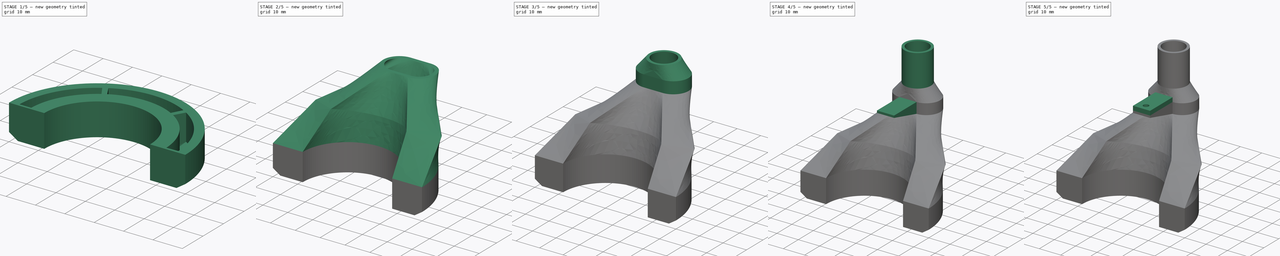
[diagram: build sequence overview — one tinted view per stage of 5, left to right]
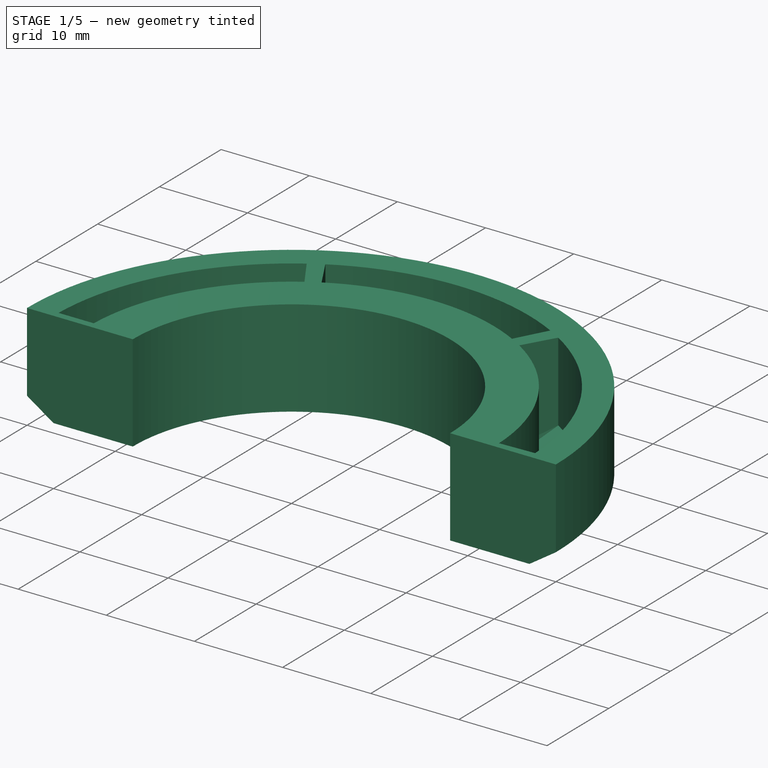
[diagram: stage 1 of 5 — iso view after this stage's code; geometry added in this stage tinted green]
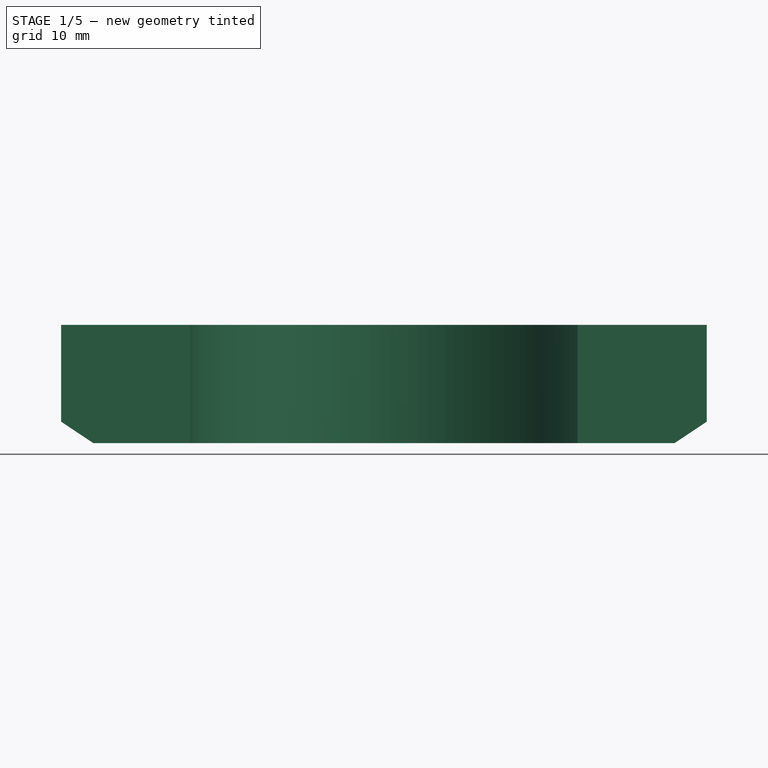
[diagram: stage 1 of 5 — front view after this stage's code; geometry added in this stage tinted green]
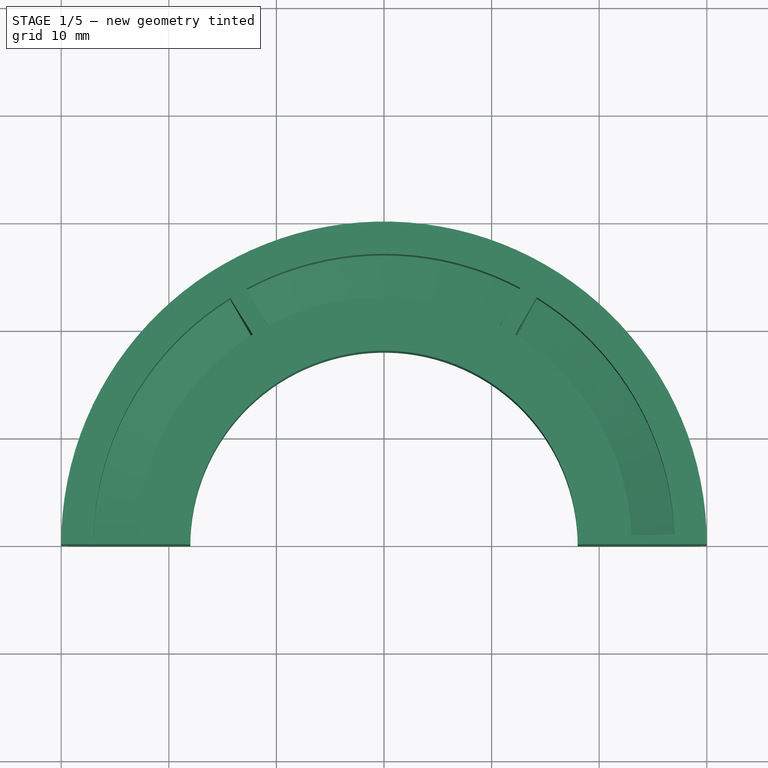
[diagram: stage 1 of 5 — top view after this stage's code; geometry added in this stage tinted green]
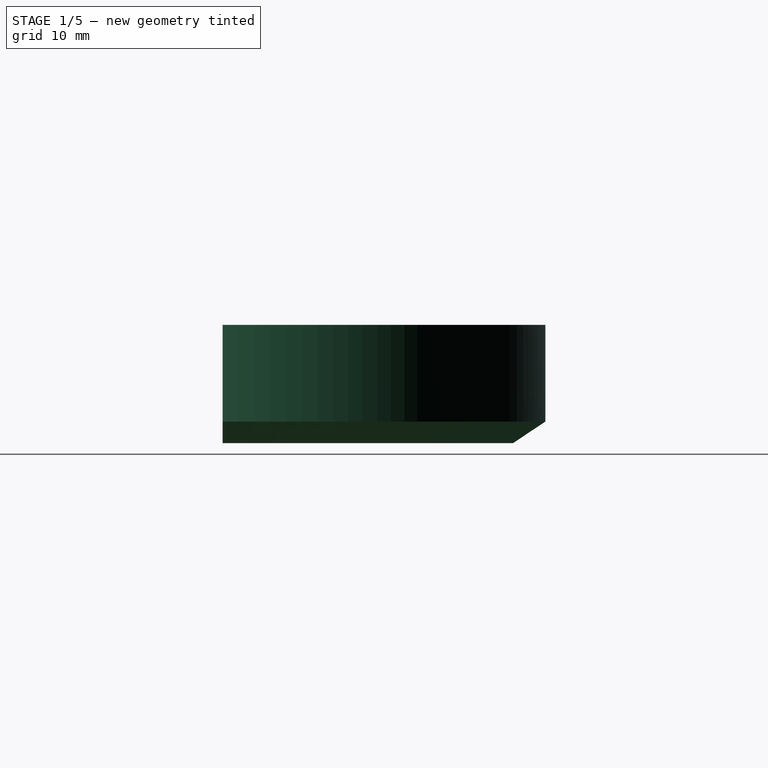
[diagram: stage 1 of 5 — right view after this stage's code; geometry added in this stage tinted green]
FCSTD DOCUMENT  (FreeCAD 2022.118R30769 (Git))
Label: CPAP-fan-diffuser
License: All rights reserved
LicenseURL: http://en.wikipedia.org/wiki/All_rights_reserved
objects: Sketcher::SketchObject×12, App::FeaturePython×11, Part::FeaturePython×8, PartDesign::Plane×6, PartDesign::AdditiveLoft×6, PartDesign::Fillet×3, PartDesign::Pad×3, PartDesign::PolarPattern×1, PartDesign::Chamfer×1, PartDesign::Hole×1, Part::Feature×1, PartDesign::Body×1
note: 72 computed .brp shape members not serialized (recipe doc carries the construction recipe); baked Part::Feature solids carry a one-line shape summary decoded from their .brp

FEATURE [Sketcher::SketchObject] Sketch
  FullyConstrained = true
  TreeRank = 13
  sketch-geometry (8):
    g0: ArcOfCircle CenterX=0 CenterY=0 CenterZ=0 NormalX=0 NormalY=0 NormalZ=1 AngleXU=0 Radius=18 StartAngle=2.0944 EndAngle=3.14159
    g1: ArcOfCircle CenterX=0 CenterY=0 CenterZ=0 NormalX=0 NormalY=0 NormalZ=1 AngleXU=0 Radius=20 StartAngle=2.13441 EndAngle=3.10158
    g2: ArcOfCircle CenterX=0 CenterY=0 CenterZ=0 NormalX=0 NormalY=0 NormalZ=1 AngleXU=0 Radius=23 StartAngle=2.13441 EndAngle=3.10158
    g3: ArcOfCircle CenterX=0 CenterY=0 CenterZ=0 NormalX=0 NormalY=0 NormalZ=1 AngleXU=0 Radius=27 StartAngle=2.0944 EndAngle=3.14159
    g4: LineSegment StartX=-12.2875 StartY=19.4426 StartZ=0 EndX=-10.6848 EndY=16.9066 EndZ=0
    g5: LineSegment StartX=-13.5 StartY=23.3827 StartZ=0 EndX=-9 EndY=15.5885 EndZ=0
    g6: LineSegment StartX=-27 StartY=3.3e-15 StartZ=0 EndX=-18 EndY=2.2e-15 EndZ=0
    g7: LineSegment StartX=-19.984 StartY=0.8 StartZ=0 EndX=-22.9816 EndY=0.92 EndZ=0
  constraints (24):
    c: Coincident(g0,g-1)
    c: PointOnObject(g0,g-1)
    c: Coincident(g1,g0)
    c: Radius(g0) = 18
    c: Radius(g1) = 20
    c: Coincident(g2,g0)
    c: Coincident(g3,g0)
    c: PointOnObject(g3,g-1)
    c: Radius(g2) = 23
    c: Radius(g3) = 27
    c: Coincident(g4,g2)
    c: Coincident(g4,g1)
    c: Perpendicular(g1,g4)
    c: Coincident(g5,g3)
    c: Coincident(g5,g0)
    c: Perpendicular(g0,g5)
    c: Distance(g1,g5) = 0.8
    c: Coincident(g6,g3)
    c: Coincident(g6,g0)
    c: Coincident(g7,g1)
    c: Coincident(g7,g2)
    c: Perpendicular(g1,g7)
    c: Distance(g1,g6) = 0.8
    c: Angle(g5,g6) = 1.0472
FEATURE [PartDesign::Plane] DatumPlane
  Length = 10
  MapMode = 1
  MinimumLength = 10
  MinimumWidth = 10
  Placement = pos=(0,0,2) rot=(0,0,1;0rad)
  ResizeMode = 0
  TreeRank = 14
  Width = 10
FEATURE [Sketcher::SketchObject] Sketch001
  ExternalGeometry = -> [Sketch]
  FullyConstrained = true
  MapMode = 5
  Placement = pos=(0,0,2) rot=(0,0,1;0rad)
  Support = -> [DatumPlane]
  TreeRank = 15
  sketch-geometry (8):
    g0: ArcOfCircle CenterX=0 CenterY=0 CenterZ=0 NormalX=0 NormalY=0 NormalZ=1 AngleXU=0 Radius=18 StartAngle=2.0944 EndAngle=3.14159
    g1: ArcOfCircle CenterX=0 CenterY=0 CenterZ=0 NormalX=0 NormalY=0 NormalZ=1 AngleXU=0 Radius=23 StartAngle=2.12918 EndAngle=3.1068
    g2: ArcOfCircle CenterX=0 CenterY=0 CenterZ=0 NormalX=0 NormalY=0 NormalZ=1 AngleXU=0 Radius=27 StartAngle=2.12918 EndAngle=3.11196
    g3: ArcOfCircle CenterX=0 CenterY=0 CenterZ=0 NormalX=0 NormalY=0 NormalZ=1 AngleXU=0 Radius=30 StartAngle=2.0944 EndAngle=3.14159
    g4: LineSegment StartX=-12.1859 StartY=19.5065 StartZ=0 EndX=-14.3051 EndY=22.899 EndZ=0
    g5: LineSegment StartX=-15 StartY=25.9808 StartZ=0 EndX=-9 EndY=15.5885 EndZ=0
    g6: LineSegment StartX=-26.9881 StartY=0.8 StartZ=0 EndX=-22.9861 EndY=0.8 EndZ=0
    g7: LineSegment StartX=-18 StartY=2.2e-15 StartZ=0 EndX=-30 EndY=3.7e-15 EndZ=0
  constraints (23):
    c: Coincident(g0,g-3)
    c: Coincident(g0,g-3)
    c: PointOnObject(g0,g-1)
    c: Coincident(g1,g0)
    c: Coincident(g2,g0)
    c: Coincident(g3,g0)
    c: PointOnObject(g3,g-1)
    c: Coincident(g4,g1)
    c: Radius(g3) = 30
    c: Radius(g1) = 23
    c: Coincident(g4,g2)
    c: Perpendicular(g1,g4)
    c: Coincident(g5,g3)
    c: Coincident(g5,g0)
    c: Distance(g1,g5) = 0.8
    c: Coincident(g6,g2)
    c: Coincident(g6,g1)
    c: Horizontal(g6)
    c: Coincident(g7,g0)
    c: Coincident(g7,g3)
    c: Angle(g5,g7) = 1.0472
    c: Distance(g1,g7) = 0.8
    c: PointOnObject(g2,g-4)
FEATURE [PartDesign::AdditiveLoft] Loft
  AddSubType = 0
  ClaimChildren = false
  Closed = false
  Fit = 0
  FitJoin = 0
  InnerFit = 0
  InnerFitJoin = 0
  Linearize = true
  NewSolid = false
  Profile = -> Sketch
  Ruled = false
  Sections = -> [Sketch001]
  SplitProfile = false
  Suppress = false
  TreeRank = 16
  _ProfileBasedVersion = 1
FEATURE [PartDesign::Plane] DatumPlane001
  AttachmentOffset = pos=(0,0,9) rot=(1,0,0;0rad)
  Length = 10
  MapMode = 5
  MinimumLength = 10
  MinimumWidth = 10
  Placement = pos=(0,0,11) rot=(0,0,1;0rad)
  ResizeMode = 0
  Support = -> [DatumPlane]
  TreeRank = 20
  Width = 10
FEATURE [Sketcher::SketchObject] Sketch002
  ExternalGeometry = -> [Loft]
  FullyConstrained = true
  MapMode = 5
  Placement = pos=(0,0,11) rot=(0,0,1;0rad)
  Support = -> [DatumPlane001]
  TreeRank = 21
  sketch-geometry (8):
    g0: ArcOfCircle CenterX=0 CenterY=0 CenterZ=0 NormalX=0 NormalY=0 NormalZ=1 AngleXU=0 Radius=18 StartAngle=2.0944 EndAngle=3.14159
    g1: ArcOfCircle CenterX=0 CenterY=0 CenterZ=0 NormalX=0 NormalY=0 NormalZ=1 AngleXU=0 Radius=30 StartAngle=2.0944 EndAngle=3.14159
    g2: LineSegment StartX=-30 StartY=3.7e-15 StartZ=0 EndX=-18 EndY=2.2e-15 EndZ=0
    g3: LineSegment StartX=-15 StartY=25.9808 StartZ=0 EndX=-9 EndY=15.5885 EndZ=0
    g4: ArcOfCircle CenterX=0 CenterY=0 CenterZ=0 NormalX=0 NormalY=0 NormalZ=1 AngleXU=0 Radius=23 StartAngle=2.12918 EndAngle=3.1068
    g5: ArcOfCircle CenterX=0 CenterY=0 CenterZ=0 NormalX=0 NormalY=0 NormalZ=1 AngleXU=0 Radius=27 StartAngle=2.12918 EndAngle=3.11196
    g6: LineSegment StartX=-14.3051 StartY=22.899 StartZ=0 EndX=-12.1859 EndY=19.5065 EndZ=0
    g7: LineSegment StartX=-22.9861 StartY=0.8 StartZ=0 EndX=-26.9881 EndY=0.8 EndZ=0
  constraints (20):
    c: Coincident(g0,g-8)
    c: Coincident(g0,g-9)
    c: Coincident(g0,g-7)
    c: Coincident(g1,g0)
    c: Coincident(g1,g-8)
    c: Coincident(g1,g-9)
    c: Coincident(g2,g1)
    c: Coincident(g2,g0)
    c: Coincident(g3,g1)
    c: Coincident(g3,g0)
    c: Coincident(g4,g0)
    c: Coincident(g4,g-3)
    c: Coincident(g4,g-5)
    c: Coincident(g5,g0)
    c: Coincident(g5,g-4)
    c: Coincident(g5,g-5)
    c: Coincident(g6,g5)
    c: Coincident(g6,g4)
    c: Coincident(g7,g4)
    c: Coincident(g7,g5)
FEATURE [PartDesign::AdditiveLoft] Loft001
  AddSubType = 0
  BaseFeature = -> Loft
  ClaimChildren = false
  Closed = false
  Fit = 0
  FitJoin = 0
  InnerFit = 0
  InnerFitJoin = 0
  Linearize = true
  NewSolid = false
  Profile = -> Sketch001
  Ruled = false
  Sections = -> [Sketch002]
  SplitProfile = false
  Suppress = false
  TreeRank = 22
  _ProfileBasedVersion = 1
FEATURE [PartDesign::PolarPattern] PolarPattern
  AddSubType = 0
  Angle = 120
  Axis = -> Sketch001 [N_Axis]
  BaseFeature = -> Loft001
  CopyShape = false
  NewSolid = false
  Occurrences = 3
  OriginalSubs = -> [Loft001,Loft]
  Originals = -> [Loft001,Loft]
  ParallelTransform = true
  Reversed = true
  SubTransform = true
  Suppress = false
  TreeRank = 23
  _Version = 3
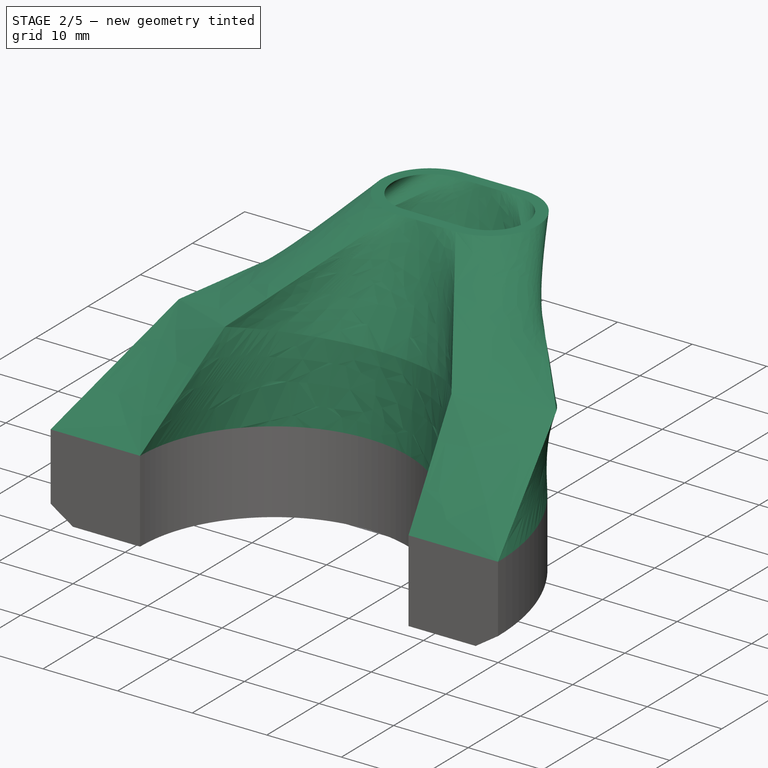
[diagram: stage 2 of 5 — iso view after this stage's code; geometry added in this stage tinted green]
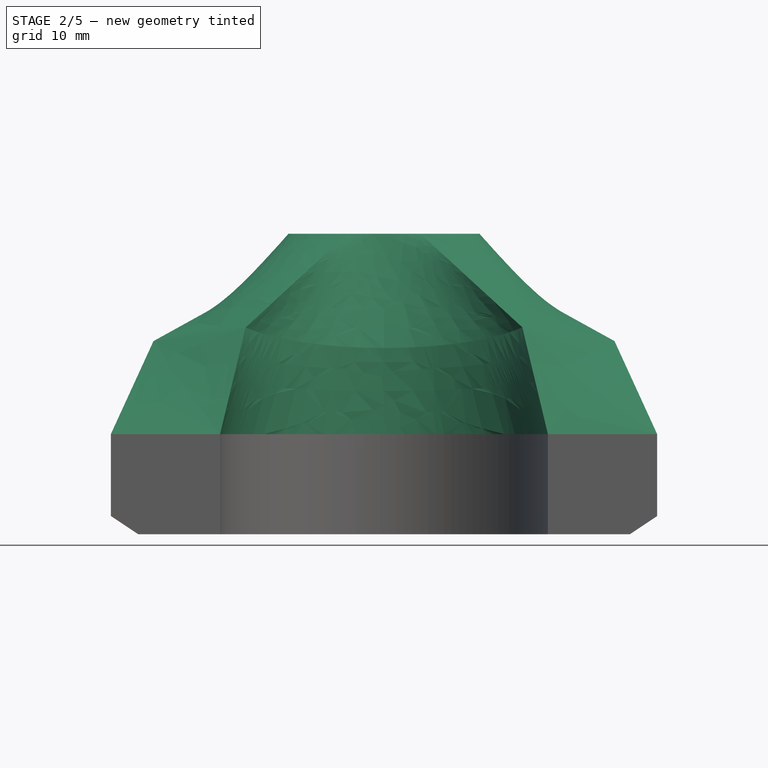
[diagram: stage 2 of 5 — front view after this stage's code; geometry added in this stage tinted green]
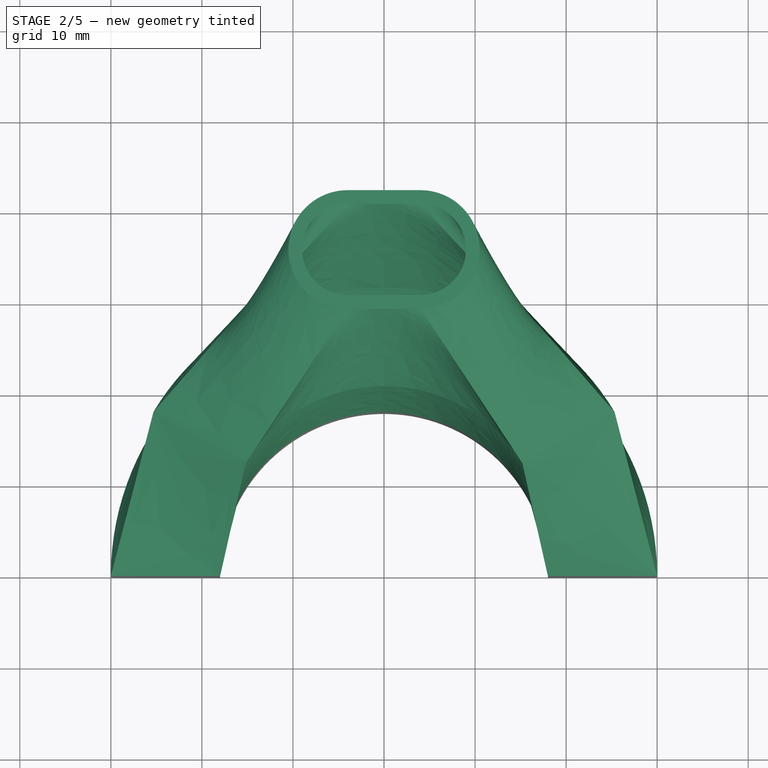
[diagram: stage 2 of 5 — top view after this stage's code; geometry added in this stage tinted green]
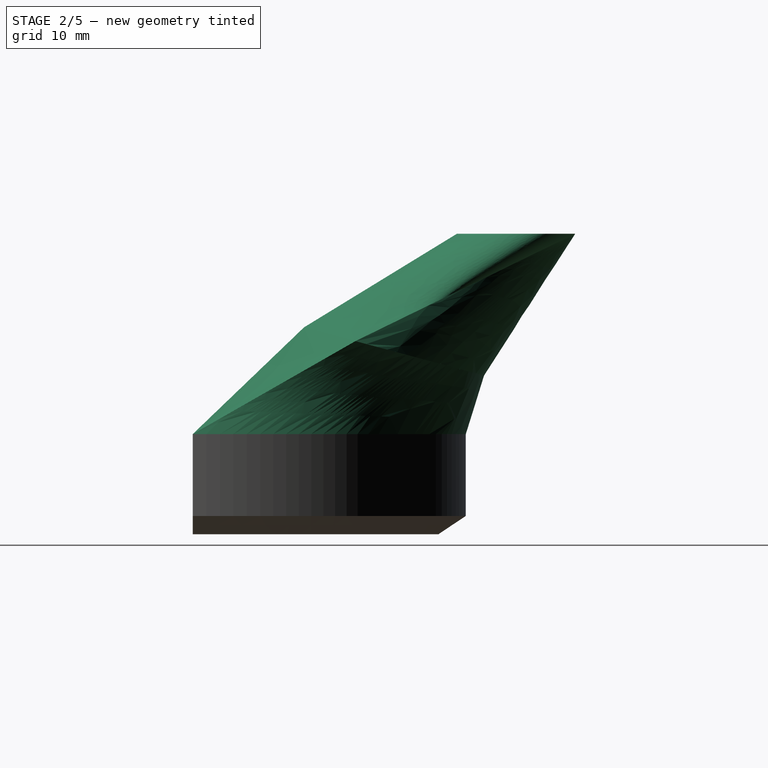
[diagram: stage 2 of 5 — right view after this stage's code; geometry added in this stage tinted green]
FEATURE [Sketcher::SketchObject] Sketch005
  ExternalGeometry = -> [PolarPattern]
  FullyConstrained = true
  MapMode = 5
  Placement = pos=(0,0,11) rot=(0,0,1;0rad)
  Support = -> [PolarPattern]
  TreeRank = 37
  sketch-geometry (16):
    g0: ArcOfCircle CenterX=9e-16 CenterY=0 CenterZ=0 NormalX=0 NormalY=0 NormalZ=1 AngleXU=0 Radius=30 StartAngle=5e-16 EndAngle=3.14159
    g1: LineSegment StartX=30 StartY=1.5e-14 StartZ=0 EndX=18 EndY=0 EndZ=0
    g2: ArcOfCircle CenterX=9e-16 CenterY=0 CenterZ=0 NormalX=0 NormalY=0 NormalZ=1 AngleXU=0 Radius=18 StartAngle=0 EndAngle=3.14159
    g3: LineSegment StartX=-18 StartY=2.2e-15 StartZ=0 EndX=-30 EndY=3.7e-15 EndZ=0
    g4: LineSegment StartX=-22.9861 StartY=0.8 StartZ=0 EndX=-26.9881 EndY=0.8 EndZ=0
    g5: ArcOfCircle CenterX=9e-16 CenterY=0 CenterZ=0 NormalX=0 NormalY=0 NormalZ=1 AngleXU=0 Radius=27 StartAngle=2.12918 EndAngle=3.11196
    g6: LineSegment StartX=-14.3051 StartY=22.899 StartZ=0 EndX=-12.1859 EndY=19.5065 EndZ=0
    g7: ArcOfCircle CenterX=9e-16 CenterY=0 CenterZ=0 NormalX=0 NormalY=0 NormalZ=1 AngleXU=0 Radius=23 StartAngle=2.12918 EndAngle=3.1068
    g8: LineSegment StartX=-10.8002 StartY=20.3065 StartZ=0 EndX=-12.8013 EndY=23.7724 EndZ=0
    g9: ArcOfCircle CenterX=9e-16 CenterY=0 CenterZ=0 NormalX=0 NormalY=0 NormalZ=1 AngleXU=0 Radius=27 StartAngle=1.08199 EndAngle=2.06476
    g10: LineSegment StartX=12.6785 StartY=23.8381 StartZ=0 EndX=10.8002 EndY=20.3065 EndZ=0
    g11: ArcOfCircle CenterX=9e-16 CenterY=0 CenterZ=0 NormalX=0 NormalY=0 NormalZ=1 AngleXU=0 Radius=23 StartAngle=1.08199 EndAngle=2.05961
    g12: LineSegment StartX=12.1859 StartY=19.5065 StartZ=0 EndX=14.1869 EndY=22.9724 EndZ=0
    g13: ArcOfCircle CenterX=9e-16 CenterY=0 CenterZ=0 NormalX=0 NormalY=0 NormalZ=1 AngleXU=0 Radius=27 StartAngle=0.0347896 EndAngle=1.01756
    g14: LineSegment StartX=26.9837 StartY=0.93913 StartZ=0 EndX=22.9861 EndY=0.8 EndZ=0
    g15: ArcOfCircle CenterX=5e-15 CenterY=0 CenterZ=0 NormalX=0 NormalY=0 NormalZ=1 AngleXU=0 Radius=23 StartAngle=0.0347896 EndAngle=1.01241
  constraints (40):
    c: Coincident(g0,g-1)
    c: Coincident(g0,g-3)
    c: Coincident(g0,g-10)
    c: Coincident(g1,g0)
    c: Coincident(g1,g-10)
    c: Coincident(g2,g0)
    c: Coincident(g2,g1)
    c: Coincident(g2,g-3)
    c: Coincident(g3,g2)
    c: Coincident(g3,g0)
    c: Coincident(g4,g-4)
    c: Coincident(g4,g-4)
    c: Coincident(g5,g0)
    c: Coincident(g5,g4)
    c: Coincident(g5,g-5)
    c: Coincident(g6,g5)
    c: Coincident(g6,g-5)
    c: Coincident(g7,g0)
    c: Coincident(g7,g6)
    c: Coincident(g7,g4)
    c: Coincident(g8,g-6)
    c: Coincident(g8,g-6)
    c: Coincident(g9,g0)
    c: Coincident(g9,g8)
    c: Coincident(g9,g-7)
    c: Coincident(g10,g9)
    c: Coincident(g10,g-7)
    c: Coincident(g11,g0)
    c: Coincident(g11,g10)
    c: Coincident(g11,g8)
    c: Coincident(g12,g-8)
    c: Coincident(g12,g-8)
    c: Coincident(g13,g0)
    c: Coincident(g13,g12)
    c: Coincident(g13,g-9)
    c: Coincident(g14,g13)
    c: Coincident(g14,g-9)
    c: PointOnObject(g15,g-1)
    c: Coincident(g15,g14)
    c: Coincident(g15,g12)
FEATURE [PartDesign::Plane] DatumPlane002
  AttachmentOffset = pos=(0,0,15) rot=(-1,0,0;0.261799rad)
  Length = 10
  MapMode = 5
  MinimumLength = 10
  MinimumWidth = 10
  Placement = pos=(0,0,26) rot=(-1,0,0;0.261799rad)
  ResizeMode = 0
  Support = -> [PolarPattern]
  TreeRank = 38
  Width = 10
FEATURE [Sketcher::SketchObject] Sketch006
  ExternalGeometry = -> [PolarPattern]
  FullyConstrained = true
  MapMode = 5
  Placement = pos=(0,-9e-16,26) rot=(-1,0,0;0.261799rad)
  Support = -> [DatumPlane002]
  TreeRank = 39
  sketch-geometry (16):
    g0: ArcOfCircle CenterX=0 CenterY=3.88229 CenterZ=0 NormalX=0 NormalY=0 NormalZ=1 AngleXU=0 Radius=17.542 StartAngle=0.523599 EndAngle=2.61799
    g1: LineSegment StartX=-15.1918 StartY=12.6533 StartZ=0 EndX=-25.3197 EndY=18.5006 EndZ=0
    g2: LineSegment StartX=15.1918 StartY=12.6533 StartZ=0 EndX=25.3197 EndY=18.5006 EndZ=0
    g3: ArcOfCircle CenterX=0 CenterY=3.88229 CenterZ=0 NormalX=0 NormalY=0 NormalZ=1 AngleXU=0 Radius=29.2367 StartAngle=0.523599 EndAngle=2.61799
    g4: ArcOfCircle CenterX=0 CenterY=3.88229 CenterZ=0 NormalX=0 NormalY=0 NormalZ=1 AngleXU=0 Radius=28.82 StartAngle=1.88496 EndAngle=2.58309
    g5: LineSegment StartX=-8.90587 StartY=31.2917 StartZ=0 EndX=-5.82497 EndY=21.8097 EndZ=0
    g6: ArcOfCircle CenterX=0 CenterY=3.88229 CenterZ=0 NormalX=0 NormalY=0 NormalZ=1 AngleXU=0 Radius=18.85 StartAngle=1.88496 EndAngle=2.58309
    g7: LineSegment StartX=-15.9857 StartY=13.8713 StartZ=0 EndX=-24.4407 EndY=19.1546 EndZ=0
    g8: ArcOfCircle CenterX=0 CenterY=3.88229 CenterZ=0 NormalX=0 NormalY=0 NormalZ=1 AngleXU=0 Radius=28.82 StartAngle=1.29154 EndAngle=1.85005
    g9: LineSegment StartX=7.94387 StartY=31.5858 StartZ=0 EndX=5.19576 EndY=22.0021 EndZ=0
    g10: ArcOfCircle CenterX=0 CenterY=3.88229 CenterZ=0 NormalX=0 NormalY=0 NormalZ=1 AngleXU=0 Radius=18.85 StartAngle=1.29154 EndAngle=1.85005
    g11: LineSegment StartX=-5.19576 StartY=22.0021 StartZ=0 EndX=-7.94387 EndY=31.5858 EndZ=0
    g12: ArcOfCircle CenterX=0 CenterY=3.88229 CenterZ=0 NormalX=0 NormalY=0 NormalZ=1 AngleXU=0 Radius=28.82 StartAngle=0.558505 EndAngle=1.25664
    g13: LineSegment StartX=24.4407 StartY=19.1546 StartZ=0 EndX=15.9857 EndY=13.8713 EndZ=0
    g14: ArcOfCircle CenterX=0 CenterY=3.88229 CenterZ=0 NormalX=0 NormalY=0 NormalZ=1 AngleXU=0 Radius=18.85 StartAngle=0.558505 EndAngle=1.25664
    g15: LineSegment StartX=5.82497 StartY=21.8097 StartZ=0 EndX=8.90587 EndY=31.2917 EndZ=0
  constraints (48):
    c: Coincident(g0,g-4)
    c: Angle(g0) = 2.0944
    c: DistanceY(g0,g0) = 0
    c: PointOnObject(g-3,g0)
    c: Coincident(g1,g0)
    c: Coincident(g2,g0)
    c: Perpendicular(g0,g1)
    c: Perpendicular(g0,g2)
    c: Coincident(g3,g0)
    c: Coincident(g3,g1)
    c: Coincident(g3,g2)
    c: PointOnObject(g-4,g3)
    c: Coincident(g4,g0)
    c: Coincident(g5,g4)
    c: Coincident(g6,g0)
    c: Coincident(g6,g5)
    c: Coincident(g7,g6)
    c: Coincident(g7,g4)
    c: Perpendicular(g4,g7)
    c: Perpendicular(g6,g5)
    c: Angle(g5,g7) = 0.698132
    c: Radius(g6) = 18.85
    c: Radius(g4) = 28.82
    c: Angle(g7,g1) = 0.0349066
    c: Coincident(g8,g0)
    c: Coincident(g9,g8)
    c: Coincident(g10,g0)
    c: Coincident(g10,g9)
    c: Coincident(g11,g10)
    c: Coincident(g11,g8)
    c: Perpendicular(g10,g11)
    c: Perpendicular(g10,g9)
    c: Angle(g11,g5) = 0.0349066
    c: Equal(g10,g6)
    c: Equal(g8,g4)
    c: Angle(g9,g11) = 0.558505
    c: Coincident(g12,g0)
    c: Coincident(g13,g12)
    c: Coincident(g14,g0)
    c: Coincident(g14,g13)
    c: Coincident(g15,g14)
    c: Coincident(g15,g12)
    c: Perpendicular(g14,g15)
    c: Perpendicular(g14,g13)
    c: Equal(g14,g10)
    c: Equal(g12,g8)
    c: Angle(g15,g9) = 0.0349066
    c: Angle(g13,g15) = 0.698132
FEATURE [PartDesign::AdditiveLoft] Loft002
  AddSubType = 0
  BaseFeature = -> PolarPattern
  ClaimChildren = false
  Closed = false
  Fit = 0
  FitJoin = 0
  InnerFit = 0
  InnerFitJoin = 0
  Linearize = true
  NewSolid = false
  Profile = -> Sketch005
  Ruled = false
  Sections = -> [Sketch006]
  SplitProfile = false
  Suppress = false
  TreeRank = 40
  _ProfileBasedVersion = 1
FEATURE [Sketcher::SketchObject] Sketch007
  ExternalGeometry = -> [Loft002]
  FullyConstrained = true
  MapMode = 5
  Placement = pos=(5e-16,6.5,24.2583) rot=(-1,0,0;0.261799rad)
  Support = -> [Loft002]
  TreeRank = 41
  sketch-geometry (8):
    g0: ArcOfCircle CenterX=-1.1e-15 CenterY=-2.84701 CenterZ=0 NormalX=0 NormalY=0 NormalZ=1 AngleXU=0 Radius=29.2367 StartAngle=0.523599 EndAngle=2.61799
    g1: LineSegment StartX=25.3197 StartY=11.7713 StartZ=0 EndX=15.1918 EndY=5.924 EndZ=0
    g2: ArcOfCircle CenterX=-1.1e-15 CenterY=-2.84701 CenterZ=0 NormalX=0 NormalY=0 NormalZ=1 AngleXU=0 Radius=17.542 StartAngle=0.523599 EndAngle=2.61799
    g3: LineSegment StartX=-15.1918 StartY=5.924 StartZ=0 EndX=-25.3197 EndY=11.7713 EndZ=0
    g4: ArcOfCircle CenterX=-1.1e-15 CenterY=-2.84701 CenterZ=0 NormalX=0 NormalY=0 NormalZ=1 AngleXU=0 Radius=28.82 StartAngle=0.558505 EndAngle=2.58309
    g5: LineSegment StartX=24.4407 StartY=12.4253 StartZ=0 EndX=15.9857 EndY=7.14197 EndZ=0
    g6: ArcOfCircle CenterX=-1.1e-15 CenterY=-2.84701 CenterZ=0 NormalX=0 NormalY=0 NormalZ=1 AngleXU=0 Radius=18.85 StartAngle=0.558505 EndAngle=2.58309
    g7: LineSegment StartX=-15.9857 StartY=7.14197 StartZ=0 EndX=-24.4407 EndY=12.4253 EndZ=0
  constraints (20):
    c: Coincident(g0,g-5)
    c: Coincident(g0,g-8)
    c: Coincident(g1,g0)
    c: Coincident(g1,g-8)
    c: Coincident(g2,g-4)
    c: Coincident(g2,g1)
    c: Coincident(g2,g-5)
    c: Coincident(g0,g2)
    c: Coincident(g3,g2)
    c: Coincident(g3,g0)
    c: Coincident(g4,g0)
    c: Coincident(g4,g-6)
    c: Coincident(g4,g-7)
    c: Coincident(g5,g4)
    c: Coincident(g5,g-7)
    c: Coincident(g6,g0)
    c: Coincident(g6,g5)
    c: Coincident(g6,g-6)
    c: Coincident(g7,g6)
    c: Coincident(g7,g4)
FEATURE [PartDesign::Plane] DatumPlane003
  AttachmentOffset = pos=(0,0,10) rot=(0,0,1;0rad)
  Length = 10
  MapMode = 2
  MinimumLength = 10
  MinimumWidth = 10
  Placement = pos=(0,7.209,33) rot=(-1,0,0;0rad)
  ResizeMode = 0
  TreeRank = 42
  Width = 10
FEATURE [Sketcher::SketchObject] Sketch008
  ExternalGeometry = -> [Loft002]
  FullyConstrained = true
  MapMode = 5
  Placement = pos=(0,7.209,33) rot=(0,0,1;0rad)
  Support = -> [DatumPlane003]
  TreeRank = 43
  sketch-geometry (8):
    g0: ArcOfCircle CenterX=-4 CenterY=28.3006 CenterZ=0 NormalX=0 NormalY=0 NormalZ=1 AngleXU=0 Radius=6.5 StartAngle=1.5708 EndAngle=4.71239
    g1: ArcOfCircle CenterX=4 CenterY=28.3006 CenterZ=0 NormalX=0 NormalY=0 NormalZ=1 AngleXU=0 Radius=6.5 StartAngle=4.71239 EndAngle=7.85398
    g2: LineSegment StartX=-4 StartY=21.8006 StartZ=0 EndX=4 EndY=21.8006 EndZ=0
    g3: LineSegment StartX=4 StartY=34.8006 StartZ=0 EndX=-4 EndY=34.8006 EndZ=0
    g4: ArcOfCircle CenterX=-4 CenterY=28.3006 CenterZ=0 NormalX=0 NormalY=0 NormalZ=1 AngleXU=0 Radius=5 StartAngle=1.5708 EndAngle=4.71239
    g5: ArcOfCircle CenterX=4 CenterY=28.3006 CenterZ=0 NormalX=0 NormalY=0 NormalZ=1 AngleXU=0 Radius=5 StartAngle=4.71239 EndAngle=7.85398
    g6: LineSegment StartX=-4 StartY=23.3006 StartZ=0 EndX=4 EndY=23.3006 EndZ=0
    g7: LineSegment StartX=4 StartY=33.3006 StartZ=0 EndX=-4 EndY=33.3006 EndZ=0
  constraints (17):
    c: Tangent(g0,g2) = -1.5708
    c: Tangent(g2,g1) = -1.5708
    c: Tangent(g1,g3) = -1.5708
    c: Tangent(g3,g0) = -1.5708
    c: Equal(g0,g1)
    c: DistanceY(g0,g0) = 13
    c: Tangent(g4,g6) = -1.5708
    c: Tangent(g6,g5) = -1.5708
    c: Tangent(g5,g7) = -1.5708
    c: Tangent(g7,g4) = -1.5708
    c: Equal(g4,g5)
    c: Coincident(g4,g0)
    c: Coincident(g5,g1)
    c: DistanceY(g4,g4) = 10
    c: Symmetric(g1,g0,g-2)
    c: DistanceX(g3,g3) = 8
    c: DistanceY(g4,g-4) = 0
FEATURE [PartDesign::AdditiveLoft] Loft003
  AddSubType = 0
  BaseFeature = -> Loft002
  ClaimChildren = false
  Closed = false
  Fit = 0
  FitJoin = 0
  InnerFit = 0
  InnerFitJoin = 0
  Linearize = true
  NewSolid = false
  Profile = -> Sketch007
  Ruled = false
  Sections = -> [Sketch008]
  SplitProfile = false
  Suppress = false
  TreeRank = 44
  _ProfileBasedVersion = 1
FEATURE [PartDesign::Fillet] Fillet
  AddSubType = 0
  Base = -> Loft003 [Edge27,Edge46,Edge74]
  BaseFeature = -> Loft003
  NewSolid = false
  Radius = 1
  SupportTransform = false
  Suppress = false
  TreeRank = 45
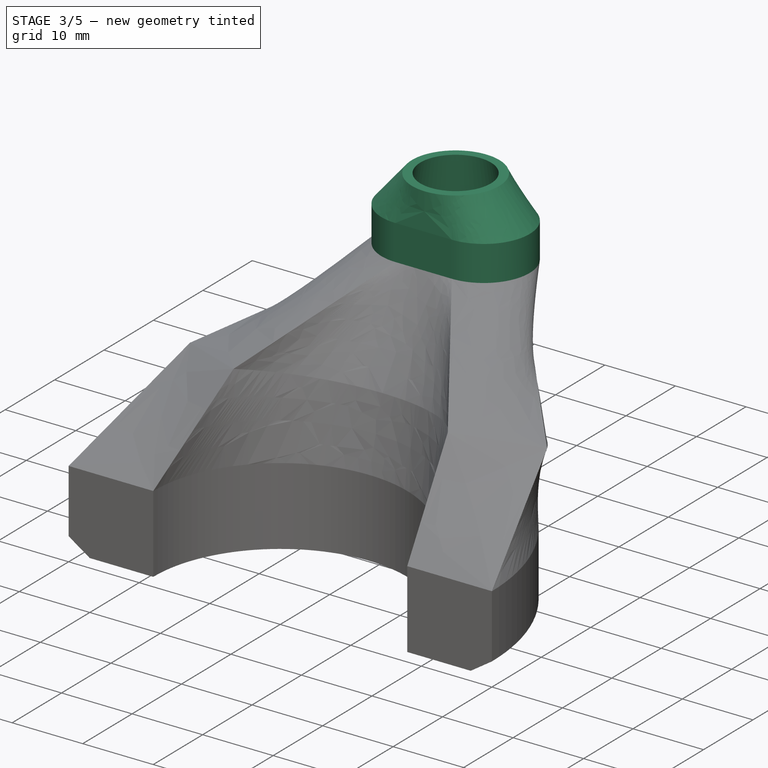
[diagram: stage 3 of 5 — iso view after this stage's code; geometry added in this stage tinted green]
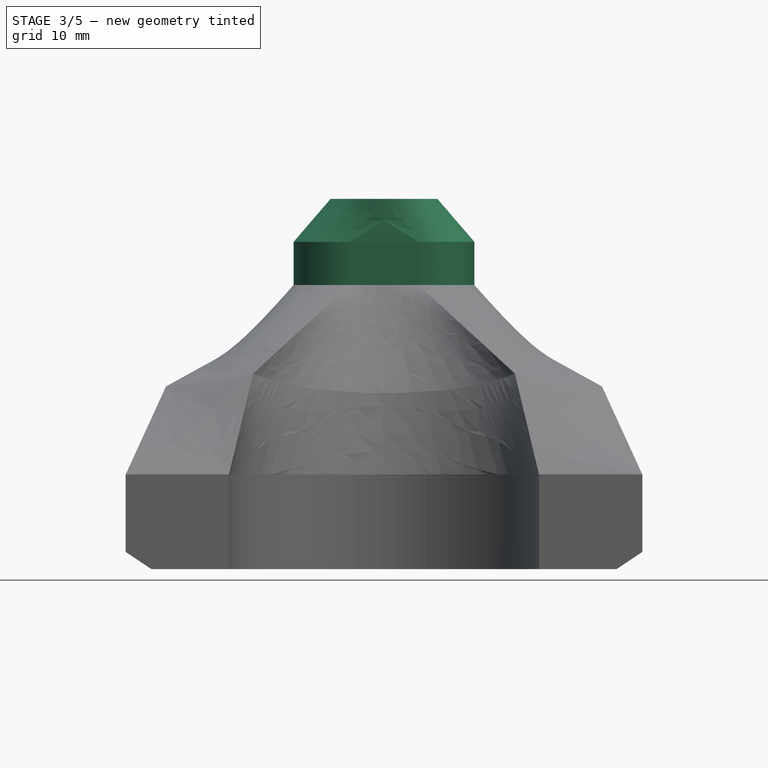
[diagram: stage 3 of 5 — front view after this stage's code; geometry added in this stage tinted green]
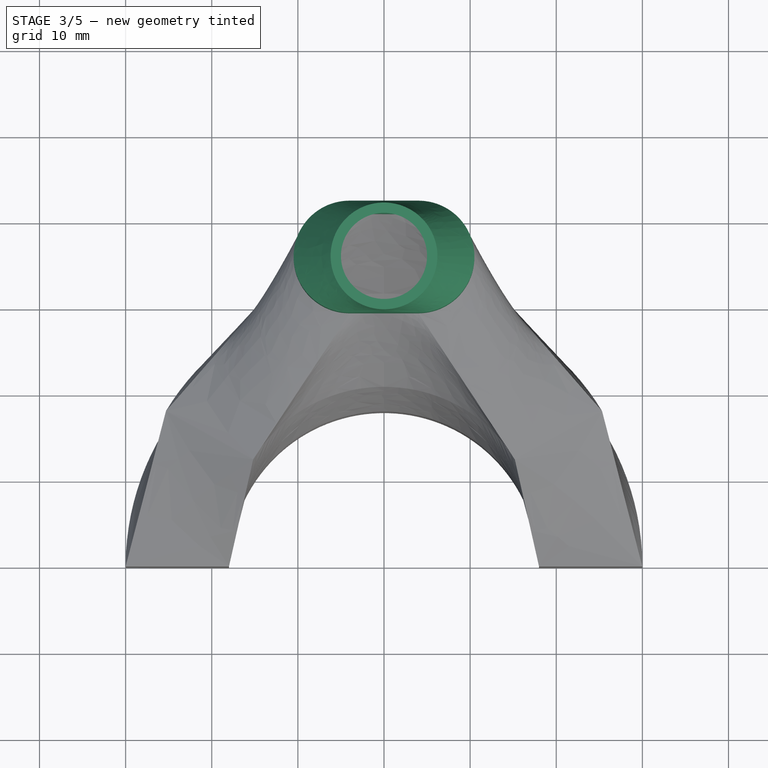
[diagram: stage 3 of 5 — top view after this stage's code; geometry added in this stage tinted green]
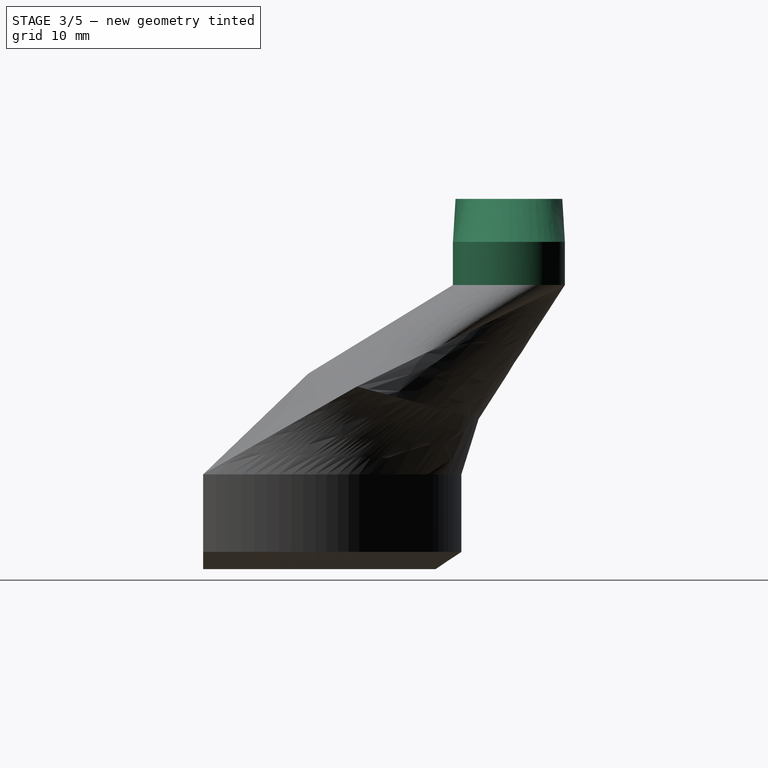
[diagram: stage 3 of 5 — right view after this stage's code; geometry added in this stage tinted green]
FEATURE [PartDesign::Fillet] Fillet001
  AddSubType = 0
  Base = -> Fillet [Edge20,Edge69,Edge99]
  BaseFeature = -> Fillet
  NewSolid = false
  Radius = 2
  SupportTransform = false
  Suppress = false
  TreeRank = 46
FEATURE [PartDesign::Plane] DatumPlane004
  AttachmentOffset = pos=(0,0,5) rot=(1,0,0;0rad)
  Length = 10
  MapMode = 5
  MinimumLength = 10
  MinimumWidth = 10
  Placement = pos=(0,0,38) rot=(0,0,1;0rad)
  ResizeMode = 0
  TreeRank = 48
  Width = 10
FEATURE [Sketcher::SketchObject] Sketch009
  ExternalGeometry = -> [Fillet001]
  FullyConstrained = true
  MapMode = 5
  Placement = pos=(0,0,38) rot=(0,0,1;0rad)
  Support = -> [DatumPlane004]
  TreeRank = 49
  sketch-geometry (5):
    g0: ArcOfCircle CenterX=4 CenterY=35.5096 CenterZ=0 NormalX=0 NormalY=0 NormalZ=1 AngleXU=0 Radius=6.5 StartAngle=4.71239 EndAngle=7.85398
    g1: ArcOfCircle CenterX=-4 CenterY=35.5096 CenterZ=0 NormalX=0 NormalY=0 NormalZ=1 AngleXU=0 Radius=6.5 StartAngle=1.5708 EndAngle=4.71239
    g2: LineSegment StartX=4 StartY=42.0096 StartZ=0 EndX=-4 EndY=42.0096 EndZ=0
    g3: LineSegment StartX=-4 StartY=29.0096 StartZ=0 EndX=4 EndY=29.0096 EndZ=0
    g4: Circle CenterX=0 CenterY=35.5096 CenterZ=0 NormalX=0 NormalY=0 NormalZ=1 AngleXU=0 Radius=5.8
  constraints (10):
    c: Tangent(g0,g2) = -1.5708
    c: Tangent(g2,g1) = -1.5708
    c: Tangent(g1,g3) = -1.5708
    c: Tangent(g3,g0) = -1.5708
    c: Symmetric(g0,g1,g-2)
    c: Radius(g4) = 5.8
    c: PointOnObject(g4,g-2)
    c: DistanceY(g4,g1) = 0
    c: Coincident(g1,g-4)
    c: Coincident(g0,g-6)
FEATURE [PartDesign::AdditiveLoft] Loft004
  AddSubType = 0
  BaseFeature = -> Fillet001
  ClaimChildren = false
  Closed = false
  Fit = 0
  FitJoin = 0
  InnerFit = 0
  InnerFitJoin = 0
  Linearize = true
  NewSolid = false
  Profile = -> Sketch008
  Ruled = false
  Sections = -> [Sketch009]
  SplitProfile = false
  Suppress = false
  TreeRank = 50
  _ProfileBasedVersion = 1
FEATURE [PartDesign::Plane] DatumPlane005
  AttachmentOffset = pos=(0,0,5) rot=(1,0,0;0rad)
  Length = 60
  MapMode = 5
  MinimumLength = 10
  MinimumWidth = 10
  Placement = pos=(0,0,43) rot=(0,0,1;0rad)
  ResizeMode = 0
  Support = -> [Loft004]
  TreeRank = 51
  Width = 42.0096
FEATURE [Sketcher::SketchObject] Sketch010
  ExternalGeometry = -> [Loft004]
  FullyConstrained = true
  MapMode = 5
  Placement = pos=(0,0,43) rot=(0,0,1;0rad)
  Support = -> [DatumPlane005]
  TreeRank = 52
  sketch-geometry (2):
    g0: Circle CenterX=0 CenterY=35.5096 CenterZ=0 NormalX=0 NormalY=0 NormalZ=1 AngleXU=0 Radius=6.2
    g1: Circle CenterX=0 CenterY=35.5096 CenterZ=0 NormalX=0 NormalY=0 NormalZ=1 AngleXU=0 Radius=5
  constraints (4):
    c: Coincident(g0,g-7)
    c: Coincident(g1,g0)
    c: Radius(g1) = 5
    c: Radius(g0) = 6.2
FEATURE [PartDesign::AdditiveLoft] Loft005
  AddSubType = 0
  BaseFeature = -> Loft004
  ClaimChildren = false
  Closed = false
  Fit = 0
  FitJoin = 0
  InnerFit = 0
  InnerFitJoin = 0
  Linearize = true
  NewSolid = false
  Profile = -> Sketch009
  Ruled = false
  Sections = -> [Sketch010]
  SplitProfile = false
  Suppress = false
  TreeRank = 53
  _ProfileBasedVersion = 1
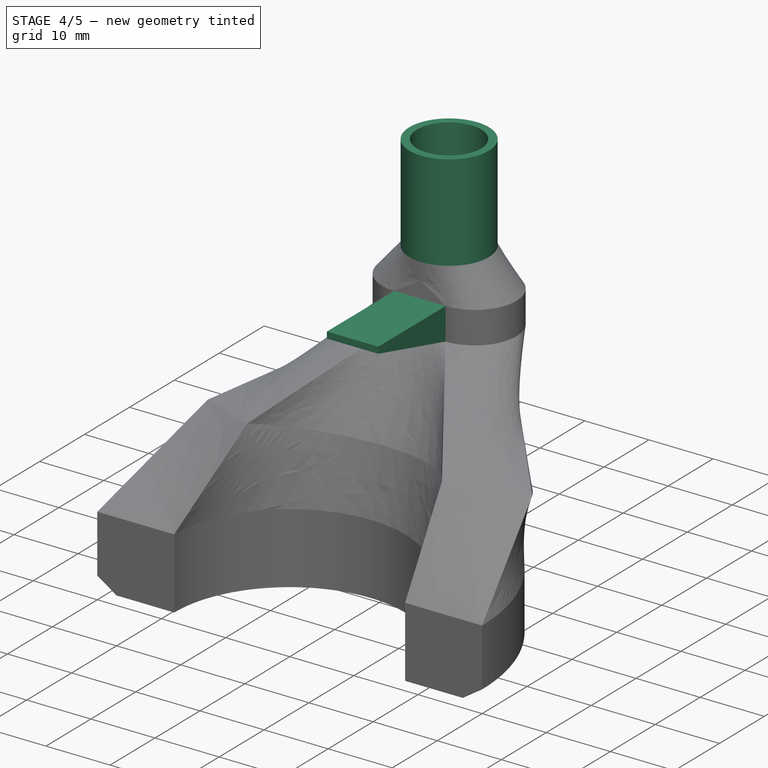
[diagram: stage 4 of 5 — iso view after this stage's code; geometry added in this stage tinted green]
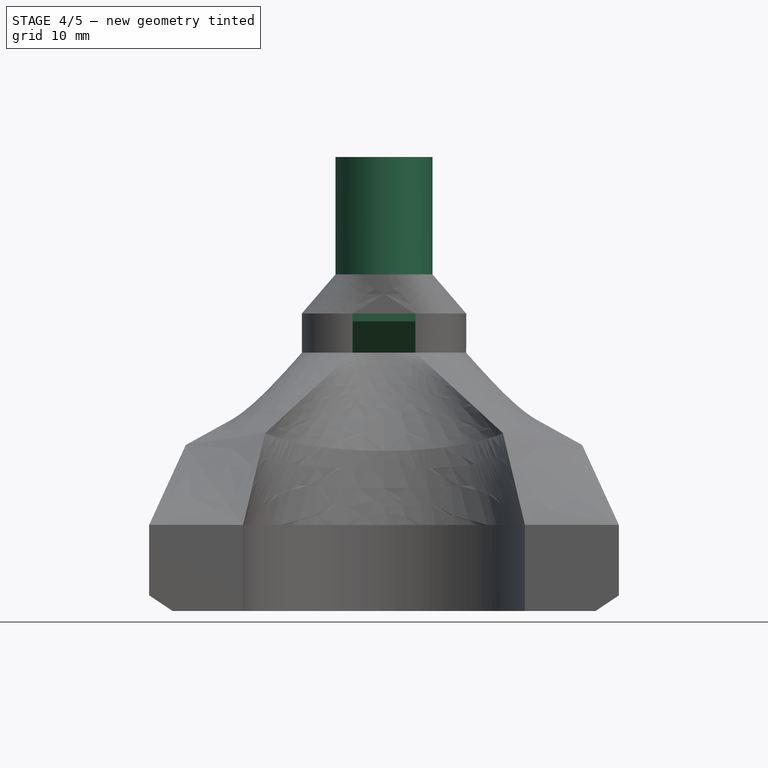
[diagram: stage 4 of 5 — front view after this stage's code; geometry added in this stage tinted green]
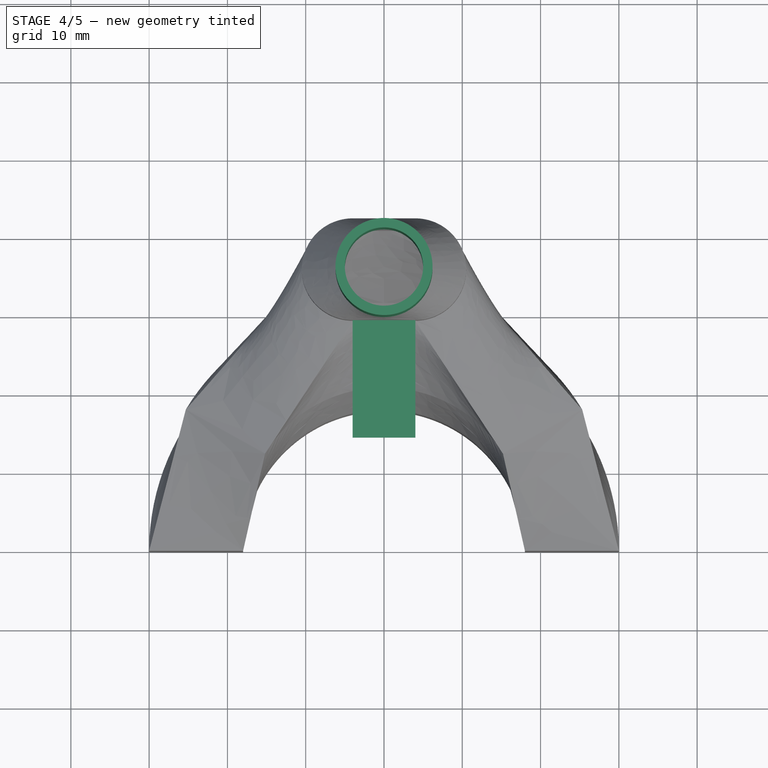
[diagram: stage 4 of 5 — top view after this stage's code; geometry added in this stage tinted green]
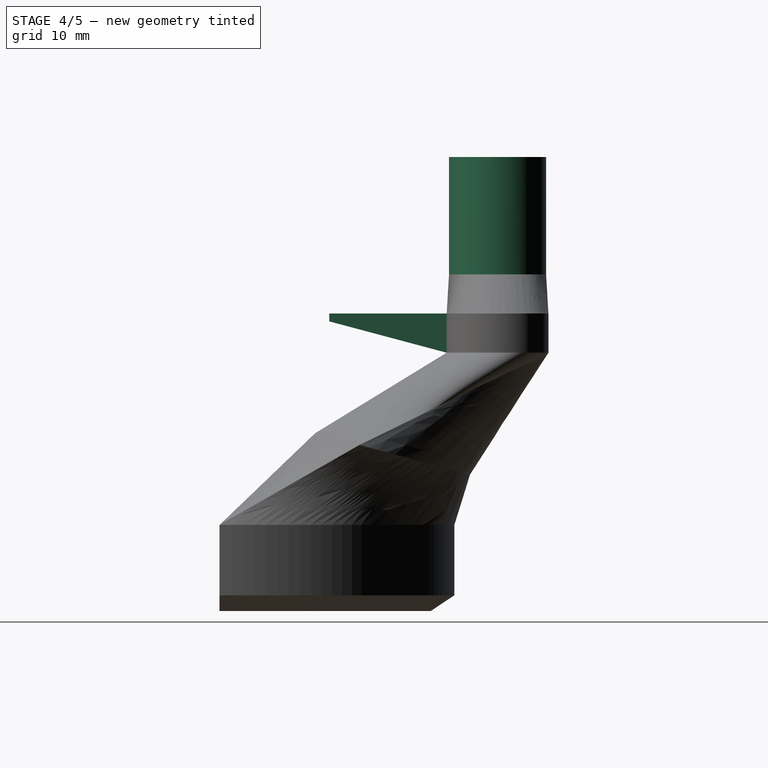
[diagram: stage 4 of 5 — right view after this stage's code; geometry added in this stage tinted green]
FEATURE [PartDesign::Pad] Pad
  AddSubType = 0
  AlongSketchNormal = false
  BaseFeature = -> Loft005
  CheckUpToFaceLimits = true
  ClaimChildren = false
  Direction = (0,0,1)
  Fit = 0
  FitJoin = 0
  InnerFit = 0
  InnerFitJoin = 0
  InnerTaperAngle = 0
  InnerTaperAngleRev = 0
  Length = 15
  Length2 = 100
  Linearize = true
  NewSolid = false
  Profile = -> Sketch010
  Suppress = false
  TreeRank = 54
  Type = 0
  _ProfileBasedVersion = 1
FEATURE [Sketcher::SketchObject] Sketch011
  ExternalGeometry = -> [Pad]
  FullyConstrained = true
  MapMode = 5
  Placement = pos=(1.36751e-11,29.0096,-2.18802e-11) rot=(1,0,0;1.5708rad)
  Support = -> [Pad]
  TreeRank = 55
  sketch-geometry (4):
    g0: LineSegment StartX=-4 StartY=38 StartZ=0 EndX=4 EndY=38 EndZ=0
    g1: LineSegment StartX=4 StartY=33 StartZ=0 EndX=-4 EndY=33 EndZ=0
    g2: LineSegment StartX=-4 StartY=33 StartZ=0 EndX=-4 EndY=38 EndZ=0
    g3: LineSegment StartX=4 StartY=38 StartZ=0 EndX=4 EndY=33 EndZ=0
  constraints (10):
    c: Coincident(g1,g2)
    c: Coincident(g2,g0)
    c: Horizontal(g0)
    c: Horizontal(g1)
    c: Vertical(g2)
    c: Coincident(g1,g-3)
    c: Coincident(g-4,g0)
    c: Coincident(g3,g0)
    c: Coincident(g3,g1)
    c: Vertical(g3)
FEATURE [PartDesign::Pad] Pad001
  AddSubType = 0
  AlongSketchNormal = false
  BaseFeature = -> Pad
  CheckUpToFaceLimits = true
  ClaimChildren = false
  Direction = (-4.714e-13,-1,7.545e-13)
  Fit = 0
  FitJoin = 0
  InnerFit = 0
  InnerFitJoin = 0
  InnerTaperAngle = 0
  InnerTaperAngleRev = 0
  Length = 15
  Length2 = 100
  Linearize = true
  NewSolid = false
  Profile = -> Sketch011
  Suppress = false
  TreeRank = 56
  Type = 0
  _ProfileBasedVersion = 1
FEATURE [PartDesign::Chamfer] Chamfer001
  AddSubType = 0
  Angle = 40
  Base = -> Pad001 [Edge206]
  BaseFeature = -> Pad001
  ChamferType = 1
  FlipDirection = false
  NewSolid = false
  Size = 14.99
  Size2 = 4
  SupportTransform = false
  Suppress = false
  TreeRank = 57
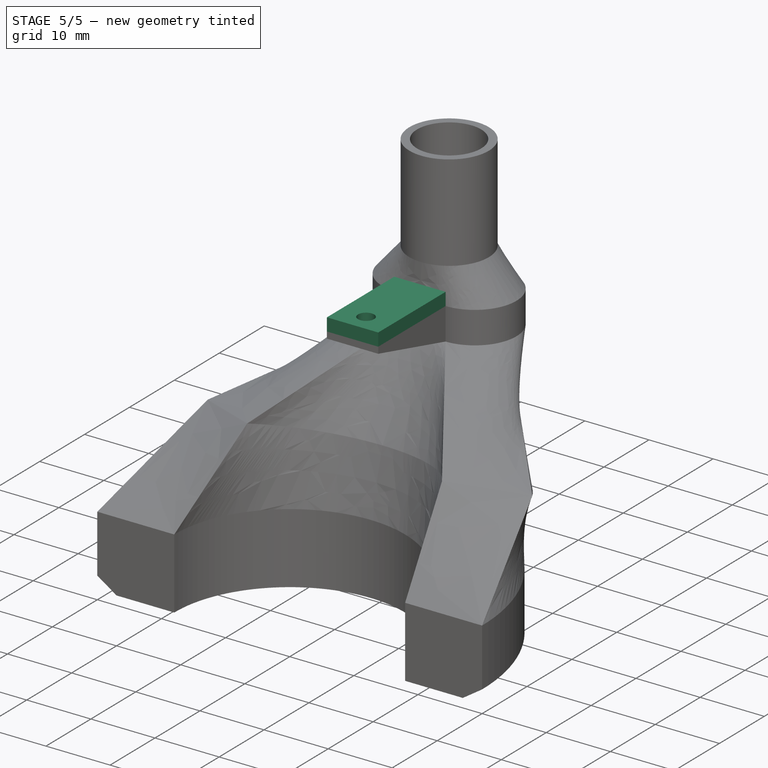
[diagram: stage 5 of 5 — iso view after this stage's code; geometry added in this stage tinted green]
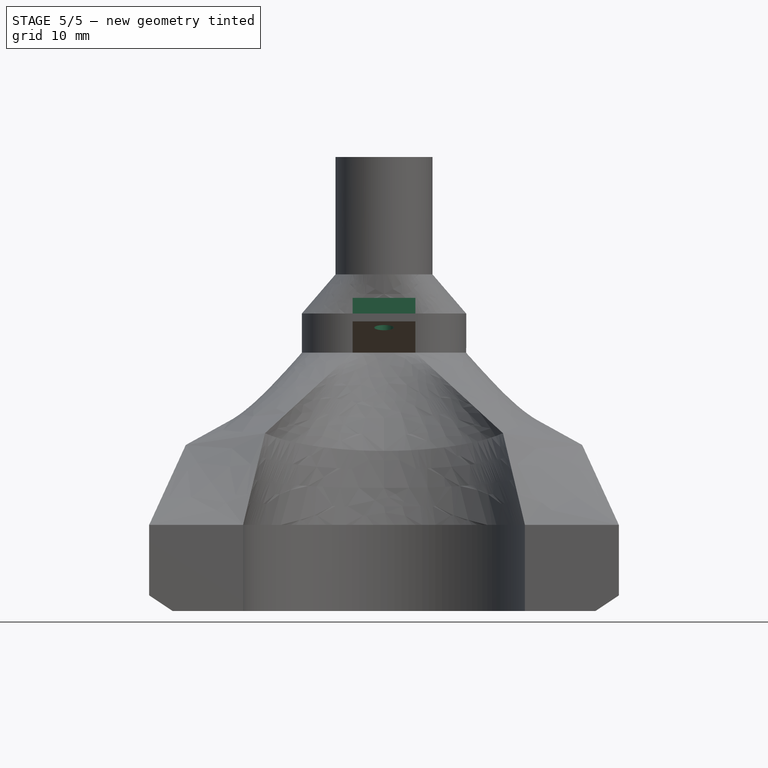
[diagram: stage 5 of 5 — front view after this stage's code; geometry added in this stage tinted green]
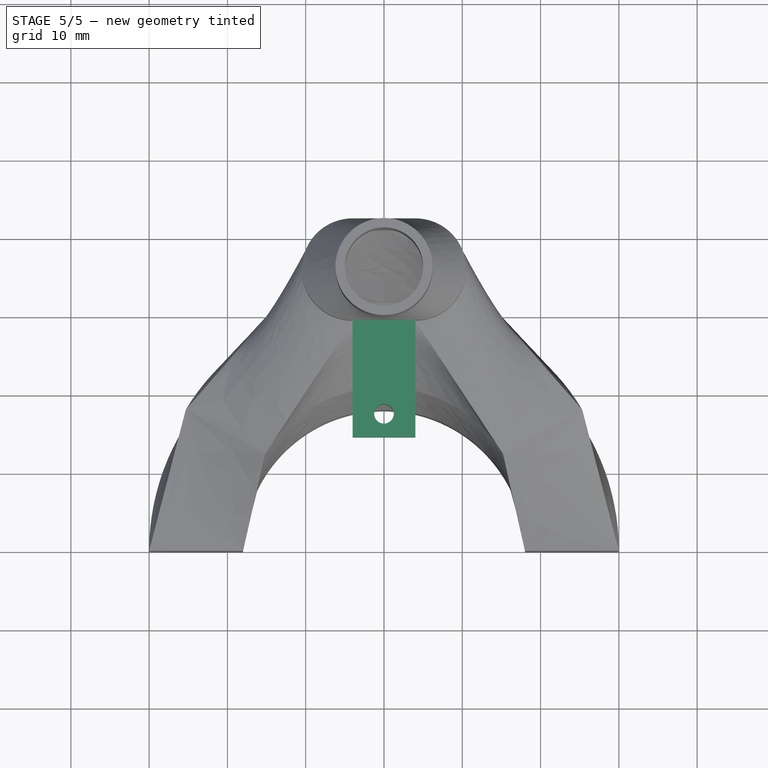
[diagram: stage 5 of 5 — top view after this stage's code; geometry added in this stage tinted green]
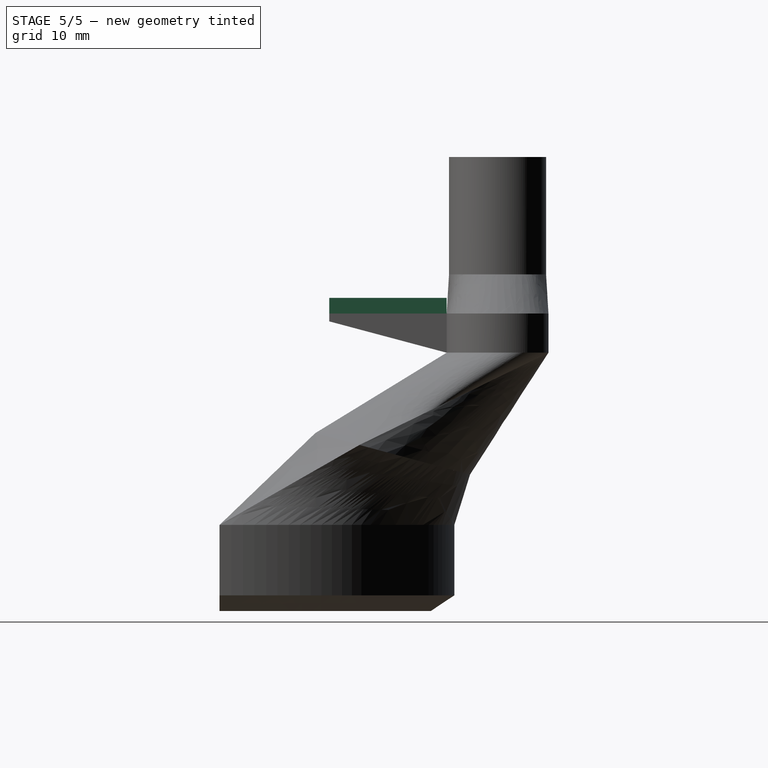
[diagram: stage 5 of 5 — right view after this stage's code; geometry added in this stage tinted green]
FEATURE [Sketcher::SketchObject] Sketch012
  ExternalGeometry = -> [Chamfer001]
  FullyConstrained = true
  MapMode = 5
  Placement = pos=(0,2.86691e-11,38) rot=(0,0,1;0rad)
  Support = -> [Chamfer001]
  TreeRank = 58
  sketch-geometry (4):
    g0: LineSegment StartX=-4 StartY=14.0096 StartZ=0 EndX=4 EndY=14.0096 EndZ=0
    g1: LineSegment StartX=4 StartY=14.0096 StartZ=0 EndX=4 EndY=29.0096 EndZ=0
    g2: LineSegment StartX=4 StartY=29.0096 StartZ=0 EndX=-4 EndY=29.0096 EndZ=0
    g3: LineSegment StartX=-4 StartY=29.0096 StartZ=0 EndX=-4 EndY=14.0096 EndZ=0
  constraints (10):
    c: Coincident(g0,g1)
    c: Coincident(g1,g2)
    c: Coincident(g2,g3)
    c: Coincident(g3,g0)
    c: Horizontal(g0)
    c: Horizontal(g2)
    c: Vertical(g1)
    c: Vertical(g3)
    c: Coincident(g0,g-3)
    c: Coincident(g1,g-4)
FEATURE [PartDesign::Pad] Pad002
  AddSubType = 0
  AlongSketchNormal = false
  BaseFeature = -> Chamfer001
  CheckUpToFaceLimits = true
  ClaimChildren = false
  Direction = (0,7.545e-13,1)
  Fit = 0
  FitJoin = 0
  InnerFit = 0
  InnerFitJoin = 0
  InnerTaperAngle = 0
  InnerTaperAngleRev = 0
  Length = 2
  Length2 = 100
  Linearize = true
  NewSolid = false
  Profile = -> Sketch012
  Suppress = false
  TreeRank = 59
  Type = 0
  _ProfileBasedVersion = 1
FEATURE [Sketcher::SketchObject] Sketch013
  ExternalGeometry = -> [Pad002]
  FullyConstrained = true
  MapMode = 5
  Placement = pos=(0,3.01648e-11,40) rot=(0,0,1;0rad)
  Support = -> [Pad002]
  TreeRank = 60
  sketch-geometry (1):
    g0: Circle CenterX=0 CenterY=17.0096 CenterZ=0 NormalX=0 NormalY=0 NormalZ=1 AngleXU=0 Radius=1.45
  constraints (3):
    c: PointOnObject(g0,g-2)
    c: Radius(g0) = 1.45
    c: DistanceY(g-4,g0) = 3
FEATURE [PartDesign::Hole] Hole
  AddSubType = 1
  BaseFeature = -> Pad002
  ClaimChildren = false
  CustomThreadClearance = 0
  Depth = 6
  DepthType = 0
  Diameter = 2.5
  DrillForDepth = false
  DrillPoint = 1
  DrillPointAngle = 118
  Fit = 0
  FitJoin = 0
  HoleCutCountersinkAngle = 90
  HoleCutCustomValues = false
  HoleCutDepth = 0
  HoleCutDiameter = 6.1
  HoleCutType = 0
  InnerFit = 0
  InnerFitJoin = 0
  Linearize = true
  ModelThread = false
  NewSolid = false
  Profile = -> Sketch013
  Suppress = false
  Tapered = false
  TaperedAngle = 90
  ThreadClass = 0
  ThreadDepth = 6
  ThreadDepthType = 0
  ThreadDirection = 0
  ThreadFit = 0
  ThreadSize = 9
  ThreadType = 1
  Threaded = true
  TreeRank = 61
  UseCustomThreadClearance = false
  _ProfileBasedVersion = 1
FEATURE [Part::Feature] Feature  label="Bevel_Gear_Extruder_w.Bondtech_Gears"
  Placement = pos=(-14.716,12.8513,71.794) rot=(0,0,1;0.523599rad)
  TreeRank = 138
  shape: large baked B-rep (31 MB .brp); summary skipped
FEATURE [PartDesign::Fillet] Fillet002
  AddSubType = 0
  Base = -> Hole [Edge163,Edge213,Edge215,Edge234,Edge232,Edge200,Edge218,Edge221,Edge216,Edge223,Edge231,Edge224,Edge226,Edge229,Edge191,Edge186,Edge177,Edge172]
  BaseFeature = -> Hole
  NewSolid = false
  Radius = 1
  SupportTransform = false
  Suppress = false
  TreeRank = 193
FEATURE [PartDesign::Body] Body
  AutoGroupSolids = false
  ExportMode = 0
  Group = -> [Sketch,DatumPlane,Sketch001,Loft,DatumPlane001,Sketch002,Loft001,PolarPattern,Sketch005,DatumPlane002,Sketch006,Loft002,Sketch007,DatumPlane003,Sketch008,Loft003,Fillet,Fillet001,DatumPlane004,Sketch009,Loft004,DatumPlane005,Sketch010,Loft005,Pad,Sketch011,Pad001,Chamfer001,Sketch012,Pad002,Sketch013,Hole,Fillet002]
  Origin = -> Origin
  Tip = -> Fillet002
  TreeRank = 168
  _ExportChildren = -> [DatumPlane,Loft,DatumPlane001,Loft001,PolarPattern,DatumPlane002,Loft002,DatumPlane003,Loft003,Fillet,Fillet001,DatumPlane004,Loft004,DatumPlane005,Loft005,Pad,Pad001,Chamfer001,Pad002,Hole,Fillet002]
  _GroupVersion = 1
FEATURE [Part::FeaturePython] Parts  # WARN: FeaturePython — macro-defined, semantics opaque (R4)
  Group = -> [Feature,Body]
  GroupMode = 0
  TreeRank = 142
  _LinkVersion = 1
FEATURE [Part::FeaturePython] Assembly  # WARN: FeaturePython — macro-defined, semantics opaque (R4)
  AutoRelax = true
  BuildShape = 0
  Freeze = false
  Group = -> [Constraints,Elements,Parts]
  TreeRank = 143
  Verbose = false
  _LinkVersion = 1
  _SolverType = 1
  _Version = 1
FEATURE [App::FeaturePython] Constraints  # WARN: FeaturePython — macro-defined, semantics opaque (R4)
  Group = -> [Constraint,Constraint001,Constraint002]
  TreeRank = 140
  _LinkVersion = 1
  _Version = 1
FEATURE [App::FeaturePython] Elements  # WARN: FeaturePython — macro-defined, semantics opaque (R4)
  Group = -> [_Element,_Element001,_Element002,_Element003,_Element004,_Element005]
  TreeRank = 141
  _LinkVersion = 1
FEATURE [App::FeaturePython] Constraint  label="AxialAlignment"  # WARN: FeaturePython — macro-defined, semantics opaque (R4)
  Angle = 0
  AnglePitch = 0
  AngleRoll = 0
  Disabled = false
  Group = -> [ElementLink,ElementLink001]
  LockAngle = false
  Multiply = false
  TreeRank = 174
  _ConstraintType = 36
  _LinkVersion = 1
  _Parent = -> Constraints
FEATURE [App::FeaturePython] ElementLink  label="_Element"  # link proxy (typed FeaturePython)
  LinkTransform = true
  LinkedObject = -> _Element
  TreeRank = 170
  _LinkVersion = 1
  _Parent = -> Constraint
FEATURE [Part::FeaturePython] _Element  # link proxy (typed FeaturePython)
  Detach = false
  LinkTransform = true
  LinkedObject = -> Body [Hole.Face9]
  TreeRank = 175
  _LinkVersion = 1
  _Parent = -> Elements
FEATURE [App::FeaturePython] ElementLink001  label="_Element001"  # link proxy (typed FeaturePython)
  LinkTransform = true
  LinkedObject = -> _Element001
  TreeRank = 172
  _LinkVersion = 1
  _Parent = -> Constraint
FEATURE [Part::FeaturePython] _Element001  # link proxy (typed FeaturePython)
  Detach = false
  LinkTransform = true
  LinkedObject = -> Feature [Face945]
  TreeRank = 176
  _LinkVersion = 1
  _Parent = -> Elements
FEATURE [App::FeaturePython] Constraint001  label="SameOrientation"  # WARN: FeaturePython — macro-defined, semantics opaque (R4)
  Disabled = false
  Group = -> [ElementLink002,ElementLink003]
  TreeRank = 182
  _ConstraintType = 2
  _LinkVersion = 1
  _Parent = -> Constraints
FEATURE [App::FeaturePython] ElementLink002  label="_Element002"  # link proxy (typed FeaturePython)
  LinkTransform = true
  LinkedObject = -> _Element002
  TreeRank = 178
  _LinkVersion = 1
  _Parent = -> Constraint001
FEATURE [Part::FeaturePython] _Element002  # link proxy (typed FeaturePython)
  Detach = false
  LinkTransform = true
  LinkedObject = -> Body [Hole.Face14]
  TreeRank = 183
  _LinkVersion = 1
  _Parent = -> Elements
FEATURE [App::FeaturePython] ElementLink003  label="_Element003"  # link proxy (typed FeaturePython)
  LinkTransform = true
  LinkedObject = -> _Element003
  TreeRank = 180
  _LinkVersion = 1
  _Parent = -> Constraint001
FEATURE [Part::FeaturePython] _Element003  # link proxy (typed FeaturePython)
  Detach = false
  LinkTransform = true
  LinkedObject = -> Feature [Face984]
  TreeRank = 184
  _LinkVersion = 1
  _Parent = -> Elements
FEATURE [App::FeaturePython] Constraint002  label="PlaneAlignment"  # WARN: FeaturePython — macro-defined, semantics opaque (R4)
  Angle = 0
  AnglePitch = 0
  AngleRoll = 0
  Cascade = false
  Disabled = false
  Group = -> [ElementLink004,ElementLink005]
  LockAngle = false
  TreeRank = 190
  _ConstraintType = 37
  _LinkVersion = 1
  _Parent = -> Constraints
FEATURE [App::FeaturePython] ElementLink004  label="_Element004"  # link proxy (typed FeaturePython)
  LinkTransform = true
  LinkedObject = -> _Element004
  TreeRank = 186
  _LinkVersion = 1
  _Parent = -> Constraint002
FEATURE [Part::FeaturePython] _Element004  # link proxy (typed FeaturePython)
  Detach = false
  LinkTransform = true
  LinkedObject = -> Body [Hole.Face20]
  TreeRank = 191
  _LinkVersion = 1
  _Parent = -> Elements
FEATURE [App::FeaturePython] ElementLink005  label="_Element005"  # link proxy (typed FeaturePython)
  LinkTransform = true
  LinkedObject = -> _Element005
  TreeRank = 188
  _LinkVersion = 1
  _Parent = -> Constraint002
FEATURE [Part::FeaturePython] _Element005  # link proxy (typed FeaturePython)
  Detach = false
  LinkTransform = true
  LinkedObject = -> Feature [Face994]
  TreeRank = 192
  _LinkVersion = 1
  _Parent = -> Elements
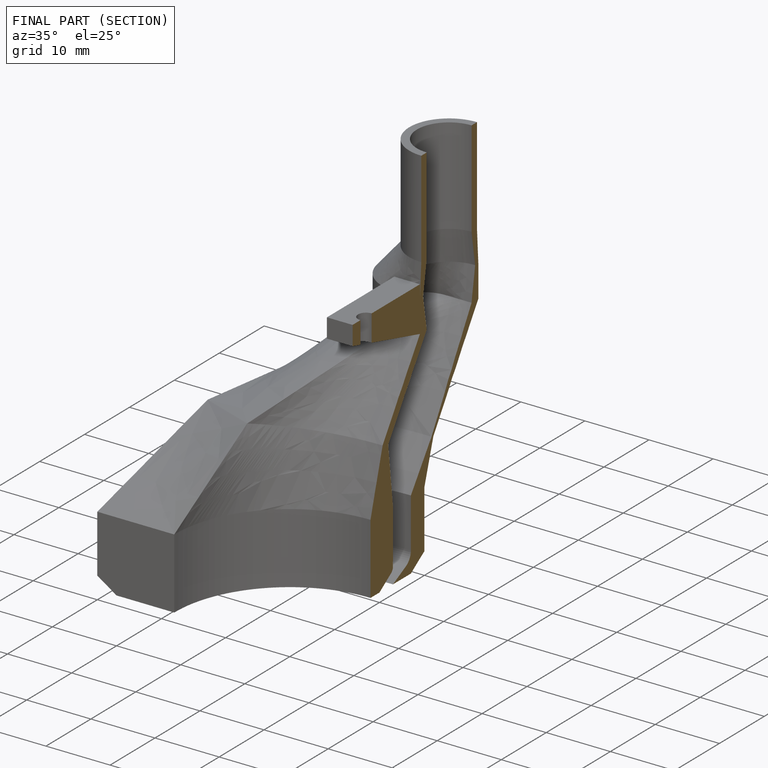
[diagram: finished part — half-section view (interior)]
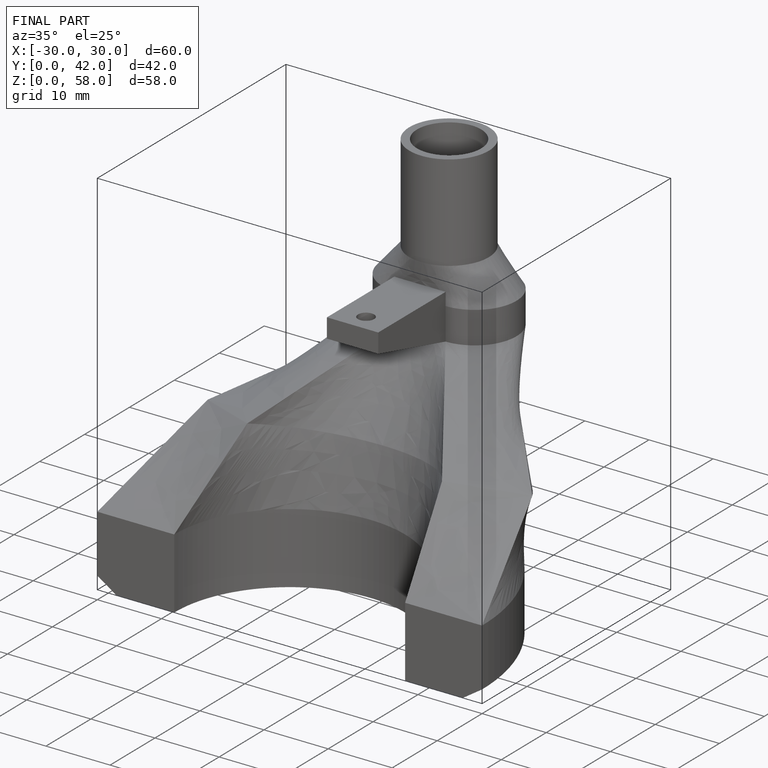
[diagram: finished part — iso view with bounding-box wireframe]
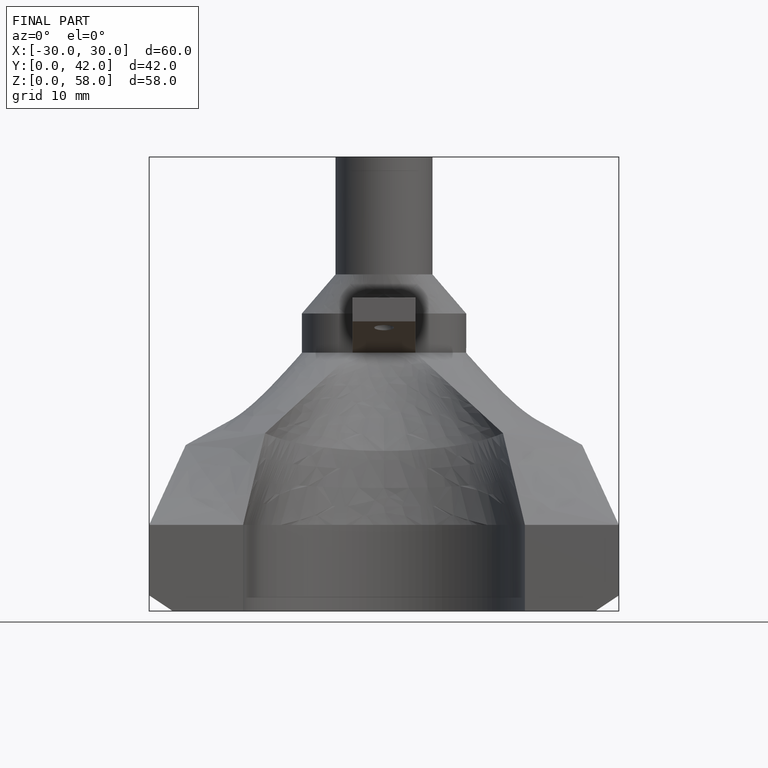
[diagram: finished part — front view with bounding-box wireframe]
